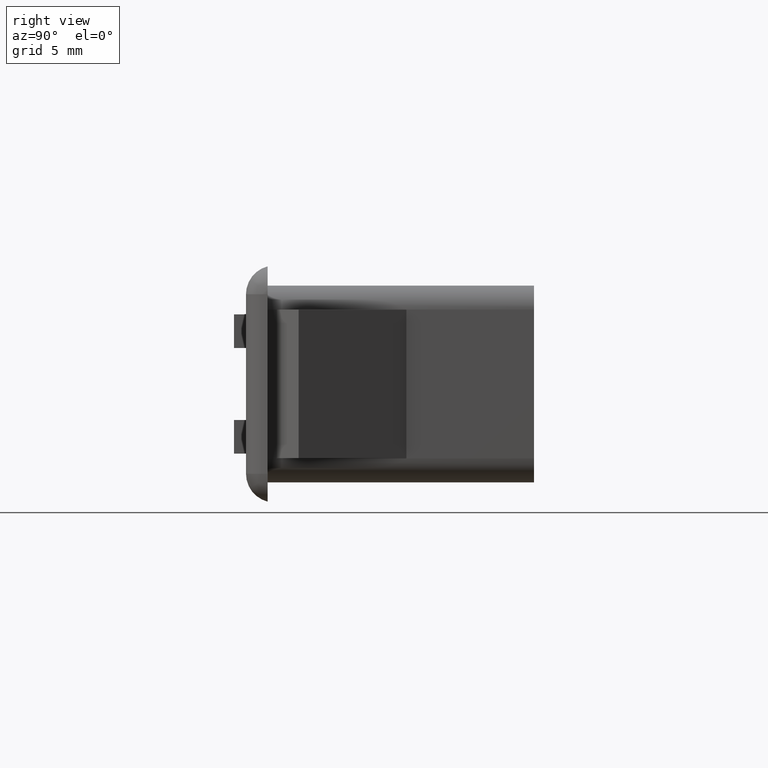
[diagram: clean part render]
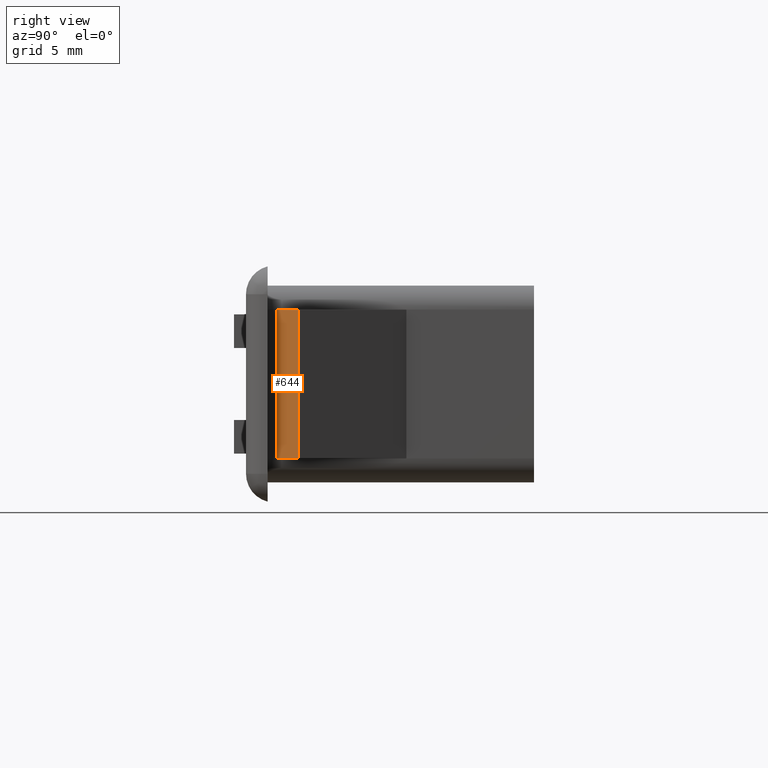
[diagram: same view with one face highlighted and labeled with its STEP entity id]
A machine part, right view. The second image highlights one B-rep face of the part: STEP entity #644.
In plain terms, the highlighted face is a freeform B-spline surface patch.
Its self-contained STEP definition (entity closure, byte-faithful):
#355=CARTESIAN_POINT('',(11.199997000000000,-10.716599000000000,3.0));
#356=VERTEX_POINT('',#355);
#362=CARTESIAN_POINT('',(12.999995999999999,-9.808495000000210,3.0));
#363=VERTEX_POINT('',#362);
#364=CARTESIAN_POINT('',(12.999995999999999,-9.808495000000210,3.0));
#365=CARTESIAN_POINT('',(11.199997000000000,-10.716599000000000,3.0));
#366=QUASI_UNIFORM_CURVE('',1,(#364,#365),.UNSPECIFIED.,.F.,.U.);
#367=EDGE_CURVE('',#363,#356,#366,.T.);
#587=CARTESIAN_POINT('',(12.999995999999999,-9.808495000000210,-3.200000000000000));
#588=VERTEX_POINT('',#587);
#594=CARTESIAN_POINT('',(11.199997000000000,-10.716599000000000,-3.200000000000000));
#595=VERTEX_POINT('',#594);
#596=CARTESIAN_POINT('',(12.999995999999999,-9.808495000000210,-3.200000000000000));
#597=CARTESIAN_POINT('',(11.199997000000000,-10.716599000000000,-3.200000000000000));
#598=QUASI_UNIFORM_CURVE('',1,(#596,#597),.UNSPECIFIED.,.F.,.U.);
#599=EDGE_CURVE('',#588,#595,#598,.T.);
#621=CARTESIAN_POINT('',(11.199997000000000,-10.716599000000000,-3.200000000000000));
#622=CARTESIAN_POINT('',(11.199997000000000,-10.716599000000000,3.0));
#623=QUASI_UNIFORM_CURVE('',1,(#621,#622),.UNSPECIFIED.,.F.,.U.);
#624=EDGE_CURVE('',#595,#356,#623,.T.);
#629=CARTESIAN_POINT('',(13.089907143004121,-9.763136722158119,-3.509690046184362));
#630=CARTESIAN_POINT('',(11.110086813368840,-10.761958813356131,-3.509690046184362));
#631=CARTESIAN_POINT('',(13.089907143004121,-9.763136722158119,3.309690157049001));
#632=CARTESIAN_POINT('',(11.110086813368840,-10.761958813356131,3.309690157049001));
#633=B_SPLINE_SURFACE_WITH_KNOTS('',1,1,((#629,#631),(#630,#632)),.UNSPECIFIED.,.F.,.F.,.U.,(2,2),(2,2),(0.0,2.217506281276855),(0.0,6.819380203233363),.UNSPECIFIED.);
#634=ORIENTED_EDGE('',*,*,#367,.T.);
#635=ORIENTED_EDGE('',*,*,#624,.F.);
#636=ORIENTED_EDGE('',*,*,#599,.F.);
#637=CARTESIAN_POINT('',(12.999995999999999,-9.808495000000210,-3.200000000000000));
#638=CARTESIAN_POINT('',(12.999995999999999,-9.808495000000210,3.0));
#639=QUASI_UNIFORM_CURVE('',1,(#637,#638),.UNSPECIFIED.,.F.,.U.);
#640=EDGE_CURVE('',#588,#363,#639,.T.);
#641=ORIENTED_EDGE('',*,*,#640,.T.);
#642=EDGE_LOOP('',(#634,#635,#636,#641));
#643=FACE_OUTER_BOUND('',#642,.T.);
#644=ADVANCED_FACE('',(#643),#633,.F.);